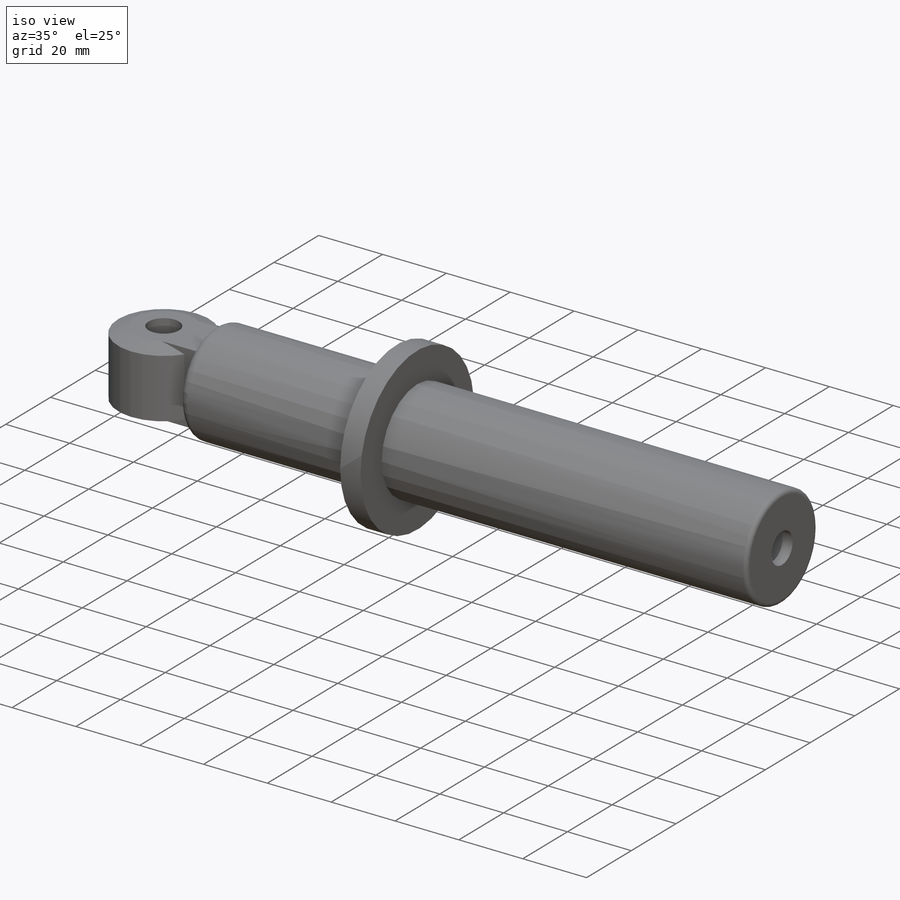
[diagram: iso view]
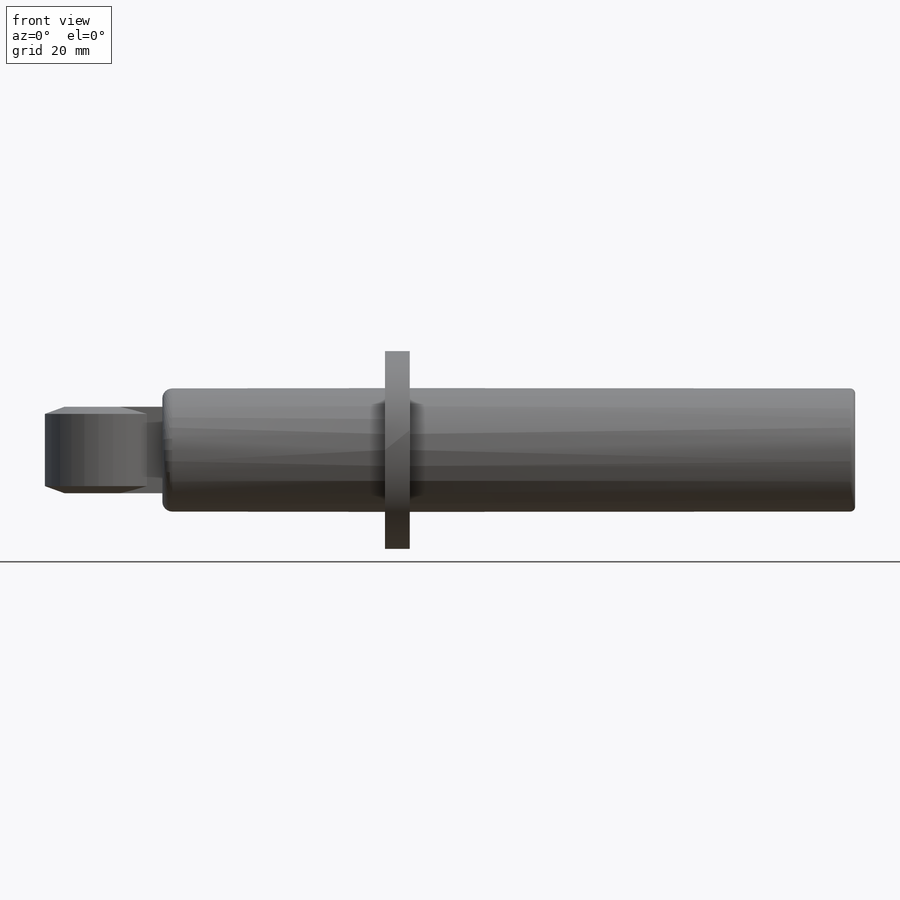
[diagram: front view]
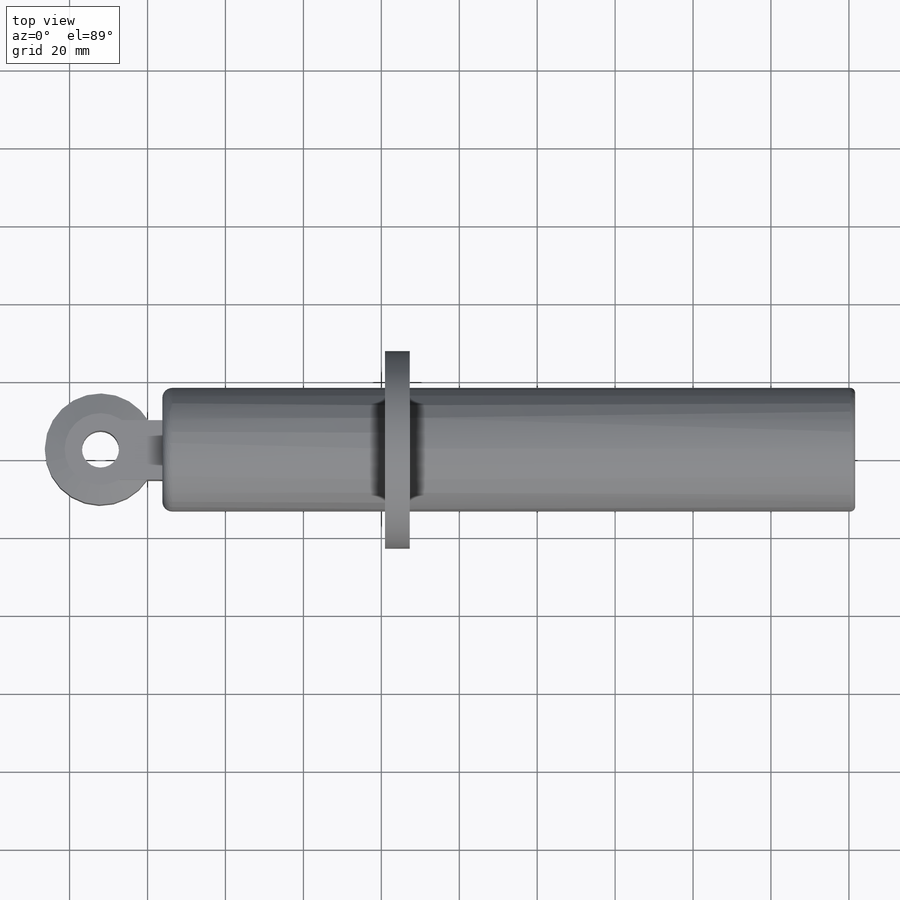
[diagram: top view]
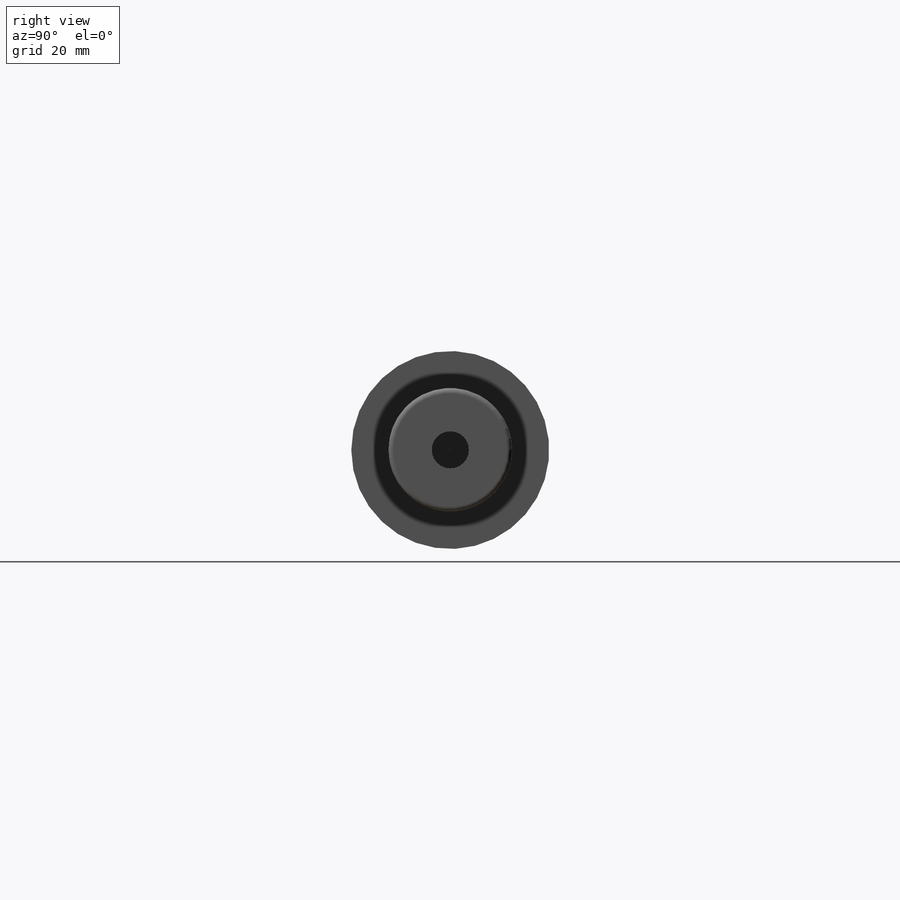
[diagram: right view]
SOLIDWORKS PART (.sldprt)
format: sldprt  version: not decoded by parser v0  size: 203,776 bytes
history: native  units: mm
features: sketch x2, fillet x2, material x1, revolve x1, extrude x1, chamfer x1 (+11 scaffold rows collapsed)
feature tree (19):
  scaffold x11  (default folders/planes/origin — collapsed)
  material  "Material <not specified>"
  sketch  "Sketch1"  dims[D1=31.75mm D2=25.4mm D3=177.8mm D4=3.175mm D5=9.525mm D6=76.2mm D7=6.35mm D8=9.525mm D9=57.15mm]
  revolve  "Revolve1"  Angle=360deg
  sketch  "Sketch2"  dims[D1=14.2875mm D2=15.875mm D3=15.24mm]
  extrude  "Boss-Extrude1"  Depth=22.225mm
  fillet  "Fillet1"  Radius=2.54mm
  chamfer  "Chamfer1"  Distance=5.08mm Angle=20deg
  fillet  "Fillet2"  Radius=1.27mm
decode coverage: 7 of 7 modeling features carry decoded parameters
note: suppression state not decoded; provenance and decode notes live in map.json
